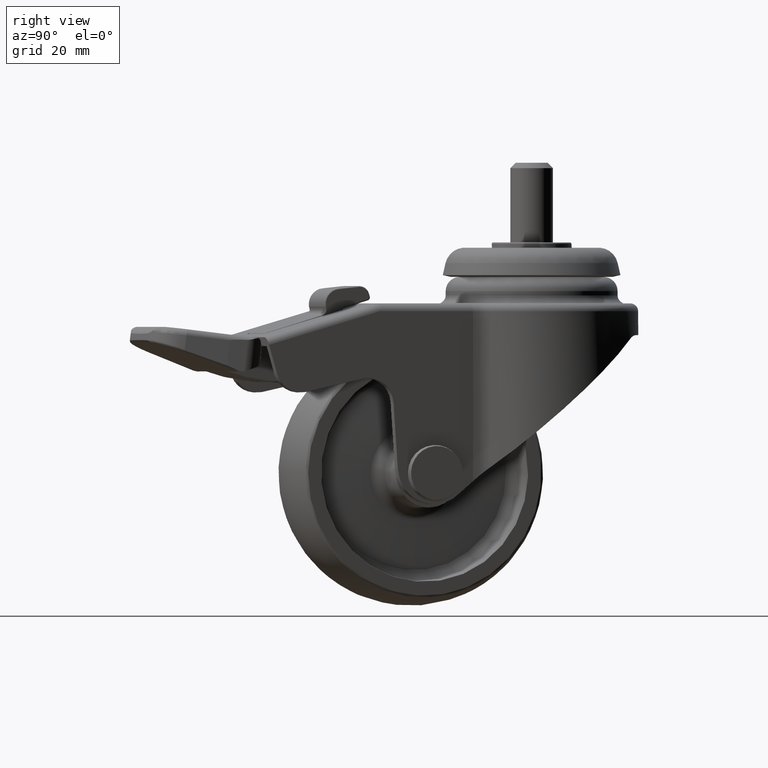
[diagram: clean part render]
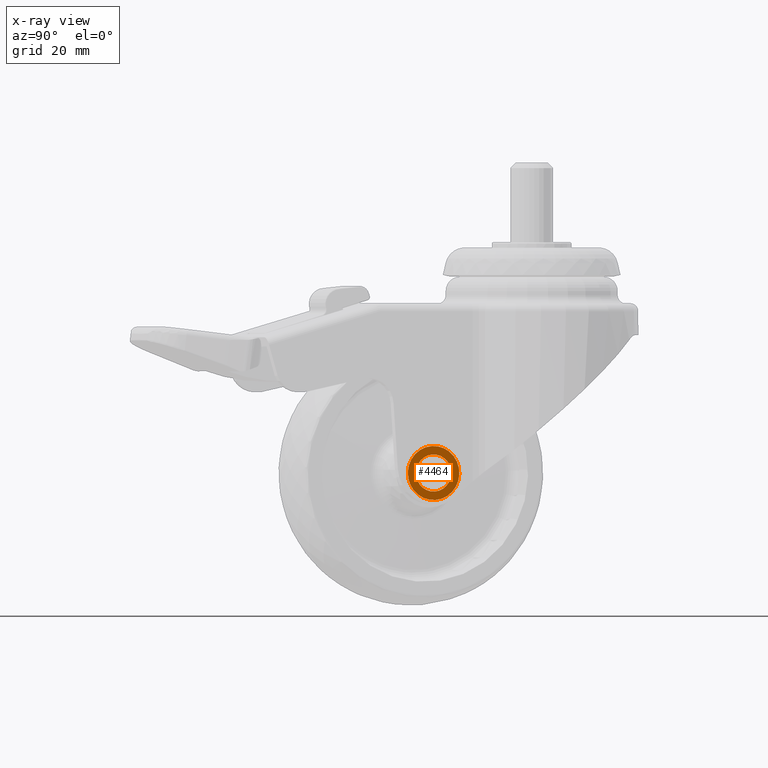
[diagram: x-ray — body ghosted, one internal face saturated and labeled with its STEP entity id]
A machine part, right view, then the same camera in x-ray: the body is ghosted and one INTERNAL B-rep face — a face not visible from any outside direction — is saturated and labeled: STEP entity #4464.
In plain terms, the highlighted planar face has unit normal (0.9516, 0.3074, -0).
Its self-contained STEP definition (entity closure, byte-faithful):
#843=PLANE('',#4796);
#1077=FACE_BOUND('',#1523,.T.);
#1203=FACE_OUTER_BOUND('',#1522,.T.);
#1522=EDGE_LOOP('',(#3192));
#1523=EDGE_LOOP('',(#3193));
#1874=CIRCLE('',#4789,5.1);
#1878=CIRCLE('',#4795,3.5);
#2068=VERTEX_POINT('',#6608);
#2072=VERTEX_POINT('',#6618);
#2509=EDGE_CURVE('',#2068,#2068,#1874,.T.);
#2513=EDGE_CURVE('',#2072,#2072,#1878,.T.);
#3192=ORIENTED_EDGE('',*,*,#2509,.F.);
#3193=ORIENTED_EDGE('',*,*,#2513,.F.);
#4464=ADVANCED_FACE('',(#1203,#1077),#843,.F.);
#4789=AXIS2_PLACEMENT_3D('',#6609,#5334,#5335);
#4795=AXIS2_PLACEMENT_3D('',#6619,#5346,#5347);
#4796=AXIS2_PLACEMENT_3D('',#6620,#5348,#5349);
#5334=DIRECTION('center_axis',(0.,1.,0.));
#5335=DIRECTION('ref_axis',(0.,0.,1.));
#5346=DIRECTION('center_axis',(0.,-1.,0.));
#5347=DIRECTION('ref_axis',(0.,0.,1.));
#5348=DIRECTION('center_axis',(0.,1.,0.));
#5349=DIRECTION('ref_axis',(0.,0.,1.));
#6608=CARTESIAN_POINT('',(0.,-2.,5.1));
#6609=CARTESIAN_POINT('Origin',(0.,-2.,0.));
#6618=CARTESIAN_POINT('',(0.,-2.,3.5));
#6619=CARTESIAN_POINT('Origin',(0.,-2.,0.));
#6620=CARTESIAN_POINT('Origin',(3.5,-2.,0.));